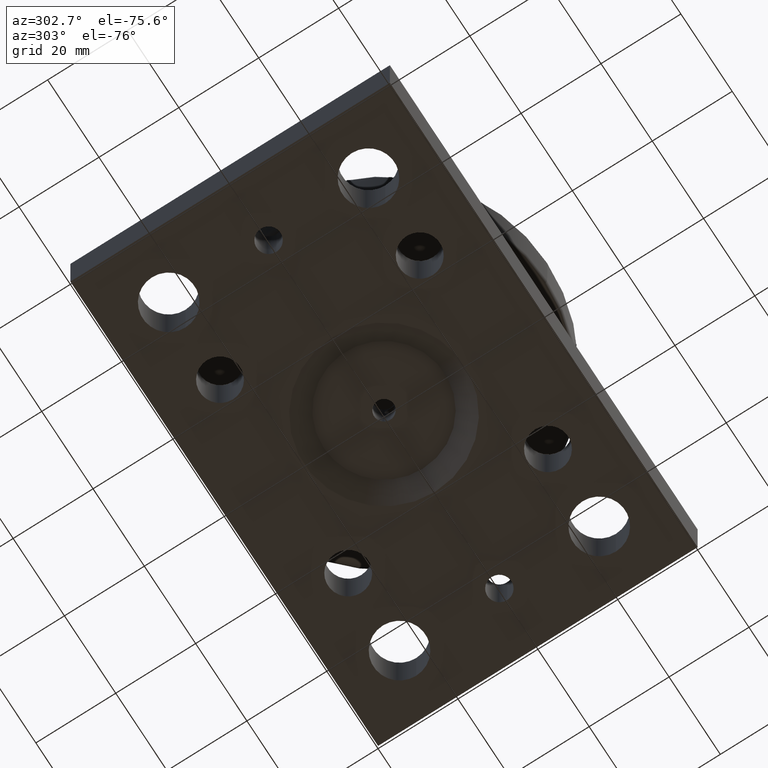
[diagram: clean part render]
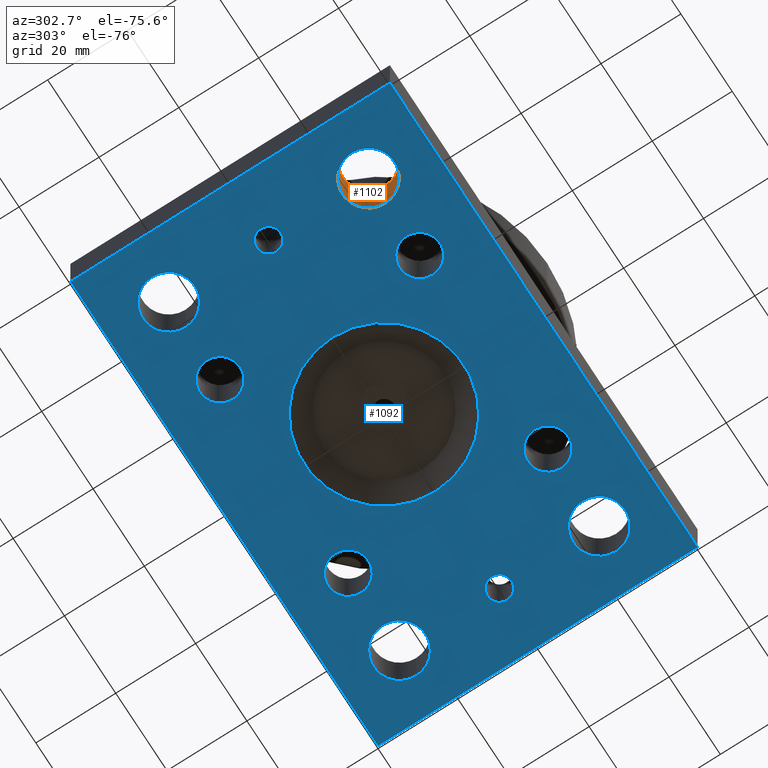
[diagram: same view with the hole feature highlighted: cylindrical wall and planar end face, labeled with their STEP entity ids]
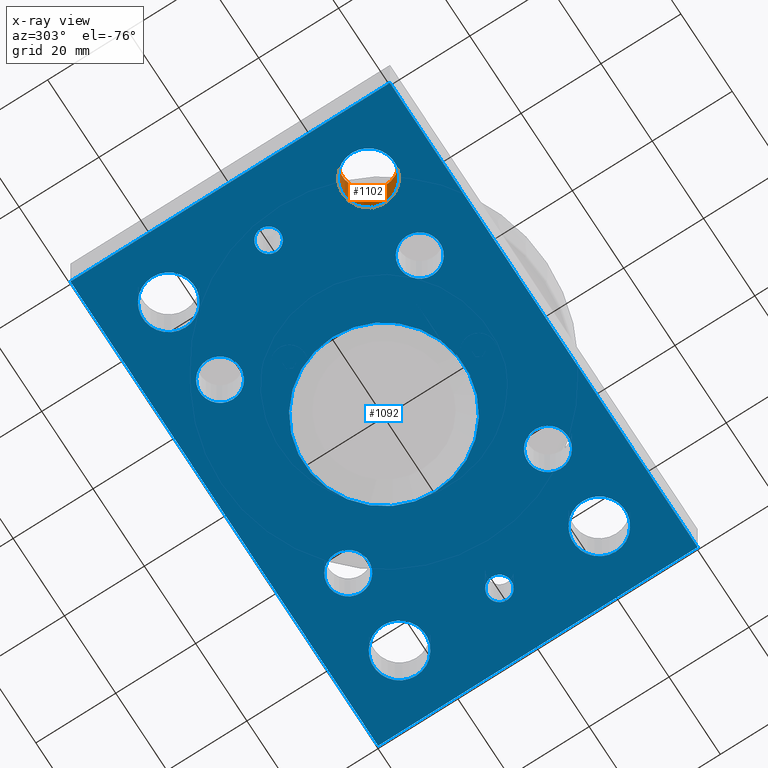
[diagram: x-ray of the same camera — body ghosted, the hole faces saturated]
A machine part, auxiliary view. The highlighted faces form one hole feature of diameter 13 mm: the cylindrical wall (entity #1102, orange) and its adjacent planar end face (entity #1092, blue) — they share a circular edge in the B-rep.
The next image is the same camera in x-ray (body ghosted, the hole faces saturated) — the bore reads through the body.
Wall:
#91=CIRCLE('',#1192,6.5);
#101=CIRCLE('',#1203,6.5);
#145=CYLINDRICAL_SURFACE('',#1218,6.5);
#186=FACE_OUTER_BOUND('',#273,.T.);
#273=EDGE_LOOP('',(#891,#892,#893,#894));
#364=LINE('',#1870,#439);
#439=VECTOR('',#1475,6.5);
#512=VERTEX_POINT('',#1810);
#526=VERTEX_POINT('',#1839);
#637=EDGE_CURVE('',#512,#512,#91,.T.);
#651=EDGE_CURVE('',#526,#526,#101,.T.);
#666=EDGE_CURVE('',#512,#526,#364,.T.);
#891=ORIENTED_EDGE('',*,*,#637,.F.);
#892=ORIENTED_EDGE('',*,*,#666,.T.);
#893=ORIENTED_EDGE('',*,*,#651,.F.);
#894=ORIENTED_EDGE('',*,*,#666,.F.);
#1102=ADVANCED_FACE('',(#186),#145,.F.);
#1192=AXIS2_PLACEMENT_3D('',#1811,#1408,#1409);
#1203=AXIS2_PLACEMENT_3D('',#1840,#1434,#1435);
#1218=AXIS2_PLACEMENT_3D('',#1869,#1473,#1474);
#1408=DIRECTION('center_axis',(0.,0.,-1.));
#1409=DIRECTION('ref_axis',(-1.,0.,0.));
#1434=DIRECTION('center_axis',(0.,0.,1.));
#1435=DIRECTION('ref_axis',(-1.,0.,0.));
#1473=DIRECTION('center_axis',(0.,0.,-1.));
#1474=DIRECTION('ref_axis',(-1.,0.,0.));
#1475=DIRECTION('',(0.,0.,-1.));
#1810=CARTESIAN_POINT('',(21.5,15.,15.));
#1811=CARTESIAN_POINT('Origin',(15.,15.,15.));
#1839=CARTESIAN_POINT('',(21.5,15.,0.));
#1840=CARTESIAN_POINT('Origin',(15.,15.,0.));
#1869=CARTESIAN_POINT('Origin',(15.,15.,15.));
#1870=CARTESIAN_POINT('',(21.5,15.,15.));
End face:
#57=FACE_BOUND('',#253,.T.);
#58=FACE_BOUND('',#254,.T.);
#59=FACE_BOUND('',#255,.T.);
#60=FACE_BOUND('',#256,.T.);
#61=FACE_BOUND('',#257,.T.);
#62=FACE_BOUND('',#258,.T.);
#63=FACE_BOUND('',#259,.T.);
#64=FACE_BOUND('',#260,.T.);
#65=FACE_BOUND('',#261,.T.);
#66=FACE_BOUND('',#262,.T.);
#67=FACE_BOUND('',#263,.T.);
#79=CIRCLE('',#1179,20.);
#97=CIRCLE('',#1199,5.053);
#98=CIRCLE('',#1200,5.053);
#99=CIRCLE('',#1201,5.053);
#100=CIRCLE('',#1202,5.053);
#101=CIRCLE('',#1203,6.5);
#102=CIRCLE('',#1204,6.5);
#103=CIRCLE('',#1205,6.5);
#104=CIRCLE('',#1206,6.5);
#105=CIRCLE('',#1207,3.);
#106=CIRCLE('',#1208,3.);
#176=FACE_OUTER_BOUND('',#252,.T.);
#252=EDGE_LOOP('',(#840,#841,#842,#843));
#253=EDGE_LOOP('',(#844));
#254=EDGE_LOOP('',(#845));
#255=EDGE_LOOP('',(#846));
#256=EDGE_LOOP('',(#847));
#257=EDGE_LOOP('',(#848));
#258=EDGE_LOOP('',(#849));
#259=EDGE_LOOP('',(#850));
#260=EDGE_LOOP('',(#851));
#261=EDGE_LOOP('',(#852));
#262=EDGE_LOOP('',(#853));
#263=EDGE_LOOP('',(#854));
#351=LINE('',#1825,#426);
#352=LINE('',#1827,#427);
#353=LINE('',#1829,#428);
#354=LINE('',#1830,#429);
#426=VECTOR('',#1422,10.);
#427=VECTOR('',#1423,10.);
#428=VECTOR('',#1424,10.);
#429=VECTOR('',#1425,10.);
#496=VERTEX_POINT('',#1776);
#518=VERTEX_POINT('',#1823);
#519=VERTEX_POINT('',#1824);
#520=VERTEX_POINT('',#1826);
#521=VERTEX_POINT('',#1828);
#522=VERTEX_POINT('',#1831);
#523=VERTEX_POINT('',#1833);
#524=VERTEX_POINT('',#1835);
#525=VERTEX_POINT('',#1837);
#526=VERTEX_POINT('',#1839);
#527=VERTEX_POINT('',#1841);
#528=VERTEX_POINT('',#1843);
#529=VERTEX_POINT('',#1845);
#530=VERTEX_POINT('',#1847);
#531=VERTEX_POINT('',#1849);
#620=EDGE_CURVE('',#496,#496,#79,.T.);
#643=EDGE_CURVE('',#518,#519,#351,.T.);
#644=EDGE_CURVE('',#520,#518,#352,.T.);
#645=EDGE_CURVE('',#521,#520,#353,.T.);
#646=EDGE_CURVE('',#519,#521,#354,.T.);
#647=EDGE_CURVE('',#522,#522,#97,.T.);
#648=EDGE_CURVE('',#523,#523,#98,.T.);
#649=EDGE_CURVE('',#524,#524,#99,.T.);
#650=EDGE_CURVE('',#525,#525,#100,.T.);
#651=EDGE_CURVE('',#526,#526,#101,.T.);
#652=EDGE_CURVE('',#527,#527,#102,.T.);
#653=EDGE_CURVE('',#528,#528,#103,.T.);
#654=EDGE_CURVE('',#529,#529,#104,.T.);
#655=EDGE_CURVE('',#530,#530,#105,.T.);
#656=EDGE_CURVE('',#531,#531,#106,.T.);
#840=ORIENTED_EDGE('',*,*,#643,.F.);
#841=ORIENTED_EDGE('',*,*,#644,.F.);
#842=ORIENTED_EDGE('',*,*,#645,.F.);
#843=ORIENTED_EDGE('',*,*,#646,.F.);
#844=ORIENTED_EDGE('',*,*,#647,.T.);
#845=ORIENTED_EDGE('',*,*,#648,.T.);
#846=ORIENTED_EDGE('',*,*,#649,.T.);
#847=ORIENTED_EDGE('',*,*,#650,.T.);
#848=ORIENTED_EDGE('',*,*,#620,.T.);
#849=ORIENTED_EDGE('',*,*,#651,.T.);
#850=ORIENTED_EDGE('',*,*,#652,.T.);
#851=ORIENTED_EDGE('',*,*,#653,.T.);
#852=ORIENTED_EDGE('',*,*,#654,.T.);
#853=ORIENTED_EDGE('',*,*,#655,.T.);
#854=ORIENTED_EDGE('',*,*,#656,.T.);
#1057=PLANE('',#1198);
#1092=ADVANCED_FACE('',(#176,#57,#58,#59,#60,#61,#62,#63,#64,#65,#66,#67),
#1057,.F.);
#1179=AXIS2_PLACEMENT_3D('',#1777,#1377,#1378);
#1198=AXIS2_PLACEMENT_3D('',#1822,#1420,#1421);
#1199=AXIS2_PLACEMENT_3D('',#1832,#1426,#1427);
#1200=AXIS2_PLACEMENT_3D('',#1834,#1428,#1429);
#1201=AXIS2_PLACEMENT_3D('',#1836,#1430,#1431);
#1202=AXIS2_PLACEMENT_3D('',#1838,#1432,#1433);
#1203=AXIS2_PLACEMENT_3D('',#1840,#1434,#1435);
#1204=AXIS2_PLACEMENT_3D('',#1842,#1436,#1437);
#1205=AXIS2_PLACEMENT_3D('',#1844,#1438,#1439);
#1206=AXIS2_PLACEMENT_3D('',#1846,#1440,#1441);
#1207=AXIS2_PLACEMENT_3D('',#1848,#1442,#1443);
#1208=AXIS2_PLACEMENT_3D('',#1850,#1444,#1445);
#1377=DIRECTION('center_axis',(0.,0.,1.));
#1378=DIRECTION('ref_axis',(-1.,0.,0.));
#1420=DIRECTION('center_axis',(0.,0.,1.));
#1421=DIRECTION('ref_axis',(1.,0.,0.));
#1422=DIRECTION('',(1.,0.,0.));
#1423=DIRECTION('',(2.96729548682753E-16,-1.,0.));
#1424=DIRECTION('',(-1.,7.40148683083438E-17,0.));
#1425=DIRECTION('',(2.22044604925031E-16,1.,0.));
#1426=DIRECTION('center_axis',(0.,0.,1.));
#1427=DIRECTION('ref_axis',(1.,0.,0.));
#1428=DIRECTION('center_axis',(0.,0.,1.));
#1429=DIRECTION('ref_axis',(1.,0.,0.));
#1430=DIRECTION('center_axis',(0.,0.,1.));
#1431=DIRECTION('ref_axis',(1.,0.,0.));
#1432=DIRECTION('center_axis',(0.,0.,1.));
#1433=DIRECTION('ref_axis',(1.,0.,0.));
#1434=DIRECTION('center_axis',(0.,0.,1.));
#1435=DIRECTION('ref_axis',(-1.,0.,0.));
#1436=DIRECTION('center_axis',(0.,0.,1.));
#1437=DIRECTION('ref_axis',(-1.,0.,0.));
#1438=DIRECTION('center_axis',(0.,0.,1.));
#1439=DIRECTION('ref_axis',(-1.,0.,0.));
#1440=DIRECTION('center_axis',(0.,0.,1.));
#1441=DIRECTION('ref_axis',(-1.,0.,0.));
#1442=DIRECTION('center_axis',(0.,0.,1.));
#1443=DIRECTION('ref_axis',(-1.,0.,0.));
#1444=DIRECTION('center_axis',(0.,0.,1.));
#1445=DIRECTION('ref_axis',(-1.,0.,0.));
#1776=CARTESIAN_POINT('',(80.,40.,0.));
#1777=CARTESIAN_POINT('Origin',(60.,40.,0.));
#1822=CARTESIAN_POINT('Origin',(60.,40.,0.));
#1823=CARTESIAN_POINT('',(0.,0.,0.));
#1824=CARTESIAN_POINT('',(120.,0.,0.));
#1825=CARTESIAN_POINT('',(0.,0.,0.));
#1826=CARTESIAN_POINT('',(-2.37383638946203E-14,80.,0.));
#1827=CARTESIAN_POINT('',(-2.37383638946203E-14,80.,0.));
#1828=CARTESIAN_POINT('',(120.,80.,0.));
#1829=CARTESIAN_POINT('',(120.,80.,0.));
#1830=CARTESIAN_POINT('',(120.,0.,0.));
#1831=CARTESIAN_POINT('',(29.947,15.,0.));
#1832=CARTESIAN_POINT('Origin',(35.,15.,0.));
#1833=CARTESIAN_POINT('',(79.947,15.,0.));
#1834=CARTESIAN_POINT('Origin',(85.,15.,0.));
#1835=CARTESIAN_POINT('',(79.947,65.,0.));
#1836=CARTESIAN_POINT('Origin',(85.,65.,0.));
#1837=CARTESIAN_POINT('',(29.947,65.,0.));
#1838=CARTESIAN_POINT('Origin',(35.,65.,0.));
#1839=CARTESIAN_POINT('',(21.5,15.,0.));
#1840=CARTESIAN_POINT('Origin',(15.,15.,0.));
#1841=CARTESIAN_POINT('',(21.5,65.,0.));
#1842=CARTESIAN_POINT('Origin',(15.,65.,0.));
#1843=CARTESIAN_POINT('',(111.5,15.,0.));
#1844=CARTESIAN_POINT('Origin',(105.,15.,0.));
#1845=CARTESIAN_POINT('',(111.5,65.,0.));
#1846=CARTESIAN_POINT('Origin',(105.,65.,0.));
#1847=CARTESIAN_POINT('',(108.,40.,0.));
#1848=CARTESIAN_POINT('Origin',(105.,40.,0.));
#1849=CARTESIAN_POINT('',(18.,40.,0.));
#1850=CARTESIAN_POINT('Origin',(15.,40.,0.));